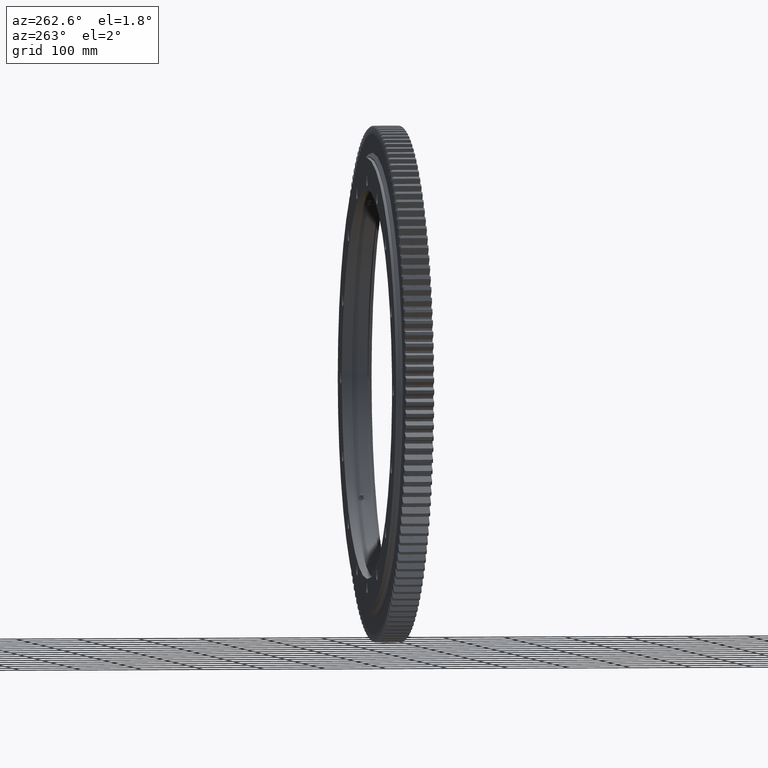
[diagram: clean part render]
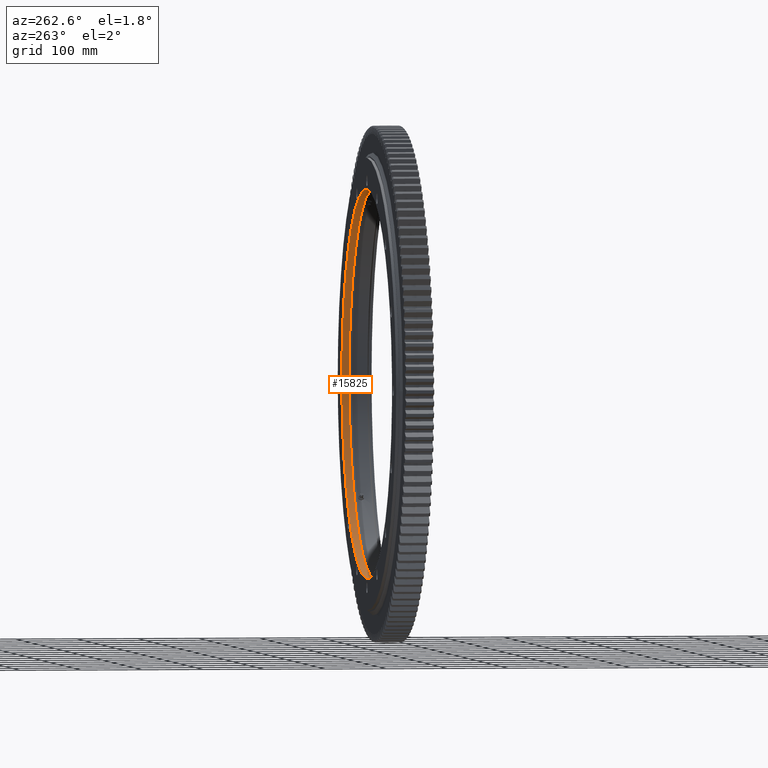
[diagram: same view with one face highlighted and labeled with its STEP entity id]
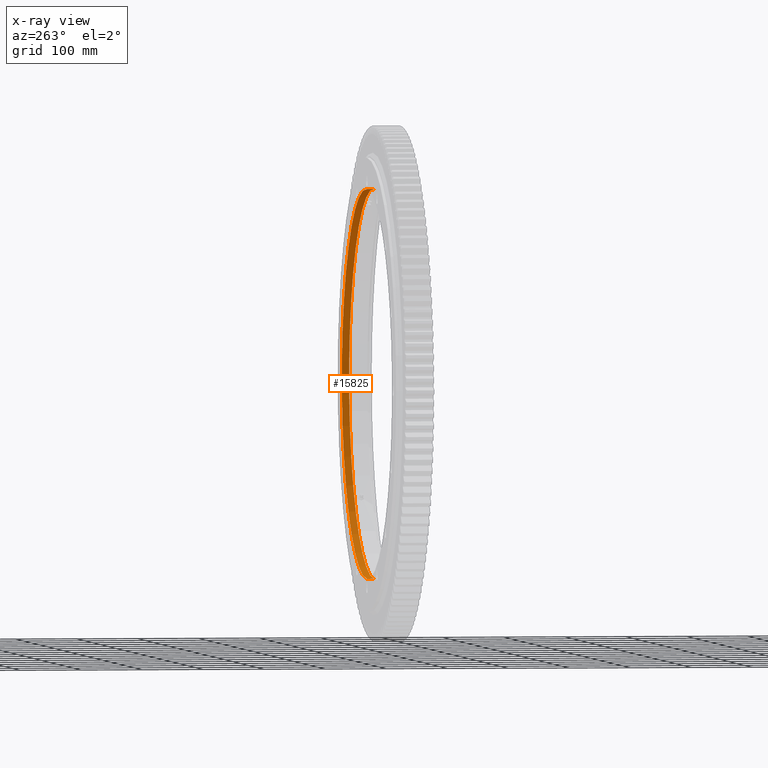
[diagram: x-ray of the same camera — body ghosted, the highlighted face saturated]
A machine part, auxiliary view. The second image highlights one B-rep face of the part: STEP entity #15825.
The next image is the same camera in x-ray: the body ghosted, the highlighted face saturated — about 0% of this face is hidden behind the body in this view.
In plain terms, the highlighted cylindrical surface (partial cylindrical patch) has radius 317 mm, axis along (-0, 1, -0).
Its self-contained STEP definition (entity closure, byte-faithful):
#1660 = CIRCLE ( 'NONE', #26426, 317.0000000000000600 ) ;
#1838 = LINE ( 'NONE', #27328, #7568 ) ;
#2364 = VERTEX_POINT ( 'NONE', #34686 ) ;
#2845 = DIRECTION ( 'NONE',  ( -0.0000000000000000000, 1.000000000000000000, -2.727064569436389700E-017 ) ) ;
#5351 = CARTESIAN_POINT ( 'NONE',  ( 0.0000000000000000000, 27.99999999999998200, 317.0000000000000000 ) ) ;
#6060 = AXIS2_PLACEMENT_3D ( 'NONE', #28080, #2845, #13507 ) ;
#6071 = VERTEX_POINT ( 'NONE', #5351 ) ;
#6599 = DIRECTION ( 'NONE',  ( -0.0000000000000000000, 1.000000000000000000, -2.727064569436389700E-017 ) ) ;
#7568 = VECTOR ( 'NONE', #6599, 1000.000000000000000 ) ;
#8249 = DIRECTION ( 'NONE',  ( -0.0000000000000000000, 1.000000000000000000, -2.727064569436389700E-017 ) ) ;
#9342 = VERTEX_POINT ( 'NONE', #32580 ) ;
#9725 = VECTOR ( 'NONE', #23702, 1000.000000000000000 ) ;
#10946 = EDGE_CURVE ( 'NONE', #2364, #9342, #1660, .T. ) ;
#12019 = CARTESIAN_POINT ( 'NONE',  ( 0.0000000000000000000, 15.99999999999995900, -1.282514094689732800E-015 ) ) ;
#12758 = ORIENTED_EDGE ( 'NONE', *, *, #26287, .F. ) ;
#13507 = DIRECTION ( 'NONE',  ( 0.0000000000000000000, 2.188925521737295700E-017, 1.000000000000000000 ) ) ;
#15158 = CYLINDRICAL_SURFACE ( 'NONE', #6060, 317.0000000000000600 ) ;
#15267 = DIRECTION ( 'NONE',  ( 0.0000000000000000000, 5.472313804343239300E-017, 1.000000000000000000 ) ) ;
#15528 = CARTESIAN_POINT ( 'NONE',  ( 3.882130353297110500E-014, 31.02910628019323600, -317.0000000000000600 ) ) ;
#15825 = ADVANCED_FACE ( 'NONE', ( #34417 ), #15158, .F. ) ;
#16662 = ORIENTED_EDGE ( 'NONE', *, *, #17603, .T. ) ;
#17603 = EDGE_CURVE ( 'NONE', #9342, #6071, #1838, .T. ) ;
#20291 = ORIENTED_EDGE ( 'NONE', *, *, #10946, .T. ) ;
#20399 = VERTEX_POINT ( 'NONE', #22121 ) ;
#22121 = CARTESIAN_POINT ( 'NONE',  ( 3.882130353297109900E-014, 27.99999999999996800, -317.0000000000000000 ) ) ;
#22143 = DIRECTION ( 'NONE',  ( 0.0000000000000000000, -1.000000000000000000, 5.298555410421252300E-017 ) ) ;
#23634 = ORIENTED_EDGE ( 'NONE', *, *, #27690, .T. ) ;
#23702 = DIRECTION ( 'NONE',  ( -0.0000000000000000000, 1.000000000000000000, -2.727064569436389700E-017 ) ) ;
#25275 = CARTESIAN_POINT ( 'NONE',  ( 0.0000000000000000000, 27.99999999999997500, -1.609761843022099700E-015 ) ) ;
#26287 = EDGE_CURVE ( 'NONE', #2364, #20399, #33067, .T. ) ;
#26426 = AXIS2_PLACEMENT_3D ( 'NONE', #12019, #22143, #15267 ) ;
#26622 = AXIS2_PLACEMENT_3D ( 'NONE', #25275, #8249, #28063 ) ;
#26997 = EDGE_LOOP ( 'NONE', ( #12758, #20291, #16662, #23634 ) ) ;
#27328 = CARTESIAN_POINT ( 'NONE',  ( 0.0000000000000000000, 31.02910628019325000, 317.0000000000000600 ) ) ;
#27690 = EDGE_CURVE ( 'NONE', #6071, #20399, #32550, .T. ) ;
#28063 = DIRECTION ( 'NONE',  ( 0.0000000000000000000, 2.188925521737296000E-017, 1.000000000000000000 ) ) ;
#28080 = CARTESIAN_POINT ( 'NONE',  ( 0.0000000000000000000, 31.02910628019324300, -1.692367527159823000E-015 ) ) ;
#32550 = CIRCLE ( 'NONE', #26622, 317.0000000000000000 ) ;
#32580 = CARTESIAN_POINT ( 'NONE',  ( 0.0000000000000000000, 15.99999999999997700, 317.0000000000000600 ) ) ;
#33067 = LINE ( 'NONE', #15528, #9725 ) ;
#34417 = FACE_OUTER_BOUND ( 'NONE', #26997, .T. ) ;
#34686 = CARTESIAN_POINT ( 'NONE',  ( 3.882130353297110500E-014, 15.99999999999994100, -317.0000000000000600 ) ) ;